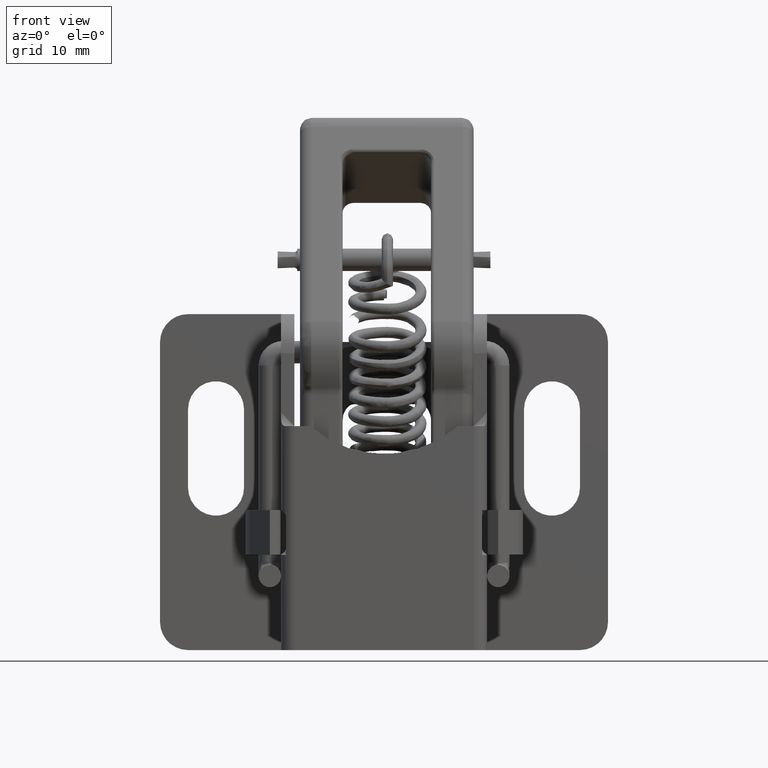
[diagram: clean part render]
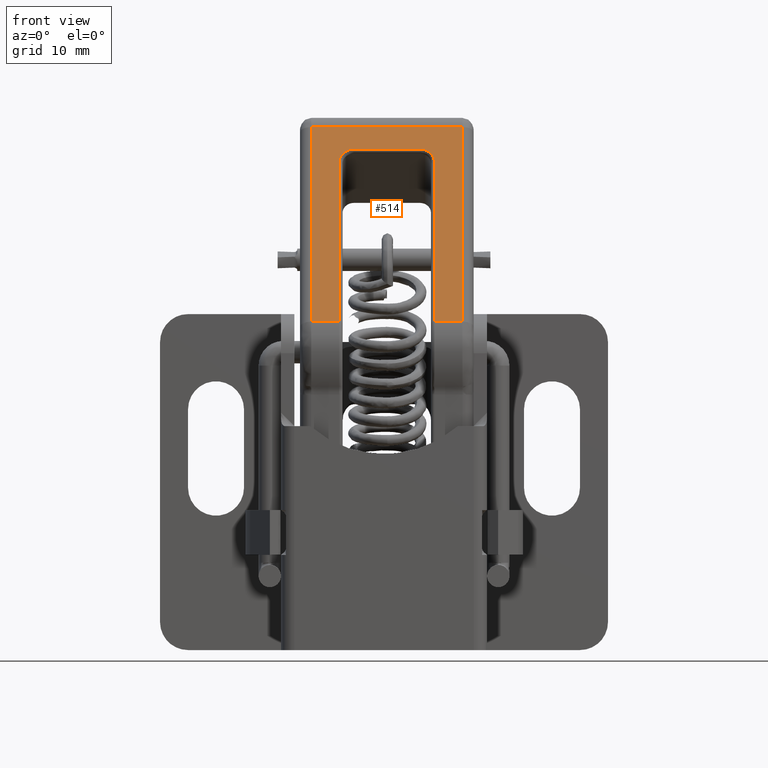
[diagram: same view with one face highlighted and labeled with its STEP entity id]
A machine part, front view. The second image highlights one B-rep face of the part: STEP entity #514.
In plain terms, the highlighted planar face has unit normal (0, 0.891, -0.454).
Its self-contained STEP definition (entity closure, byte-faithful):
#514=ADVANCED_FACE('',(#2806),#2805,.F.);
#2805=PLANE('',#5959);
#2806=FACE_OUTER_BOUND('',#5960,.T.);
#5956=CARTESIAN_POINT('',(-4.50000000000E-01,-8.10000000000E+00,1.42108547152E-15));
#5957=DIRECTION('',(7.28761780267E-16,-0.00000000000E+00,1.00000000000E+00));
#5958=DIRECTION('',(1.00000000000E+00,0.00000000000E+00,-7.28761780267E-16));
#5959=AXIS2_PLACEMENT_3D('',#5956,#5957,#5958);
#5960=EDGE_LOOP('',(#12015,#12016,#12017,#12018,#12019,#12020,#12021,#12022,#12023,#12024));
#12015=ORIENTED_EDGE('',*,*,#13056,.T.);
#12016=ORIENTED_EDGE('',*,*,#12912,.T.);
#12017=ORIENTED_EDGE('',*,*,#12909,.T.);
#12018=ORIENTED_EDGE('',*,*,#12906,.T.);
#12019=ORIENTED_EDGE('',*,*,#12903,.T.);
#12020=ORIENTED_EDGE('',*,*,#12900,.T.);
#12021=ORIENTED_EDGE('',*,*,#13057,.T.);
#12022=ORIENTED_EDGE('',*,*,#13026,.T.);
#12023=ORIENTED_EDGE('',*,*,#13055,.F.);
#12024=ORIENTED_EDGE('',*,*,#12994,.T.);
#12900=EDGE_CURVE('',#16139,#16119,#16153,.T.);
#12903=EDGE_CURVE('',#16159,#16139,#16173,.T.);
#12906=EDGE_CURVE('',#16179,#16159,#16193,.T.);
#12909=EDGE_CURVE('',#16199,#16179,#16213,.T.);
#12912=EDGE_CURVE('',#16219,#16199,#16233,.T.);
#12994=EDGE_CURVE('',#16761,#16780,#16787,.T.);
#13026=EDGE_CURVE('',#16965,#16978,#16991,.T.);
#13055=EDGE_CURVE('',#16761,#16978,#17181,.T.);
#13056=EDGE_CURVE('',#16780,#16219,#17187,.T.);
#13057=EDGE_CURVE('',#16119,#16965,#17193,.T.);
#16119=VERTEX_POINT('',#20363);
#16139=VERTEX_POINT('',#20377);
#16153=LINE('',#20386,#20387);
#16159=VERTEX_POINT('',#20389);
#16173=CIRCLE('',#20402,1.30000000000E+00);
#16179=VERTEX_POINT('',#20403);
#16193=LINE('',#20412,#20413);
#16199=VERTEX_POINT('',#20415);
#16213=CIRCLE('',#20428,1.30000000000E+00);
#16219=VERTEX_POINT('',#20429);
#16233=LINE('',#20438,#20439);
#16761=VERTEX_POINT('',#20785);
#16780=VERTEX_POINT('',#20798);
#16787=LINE('',#20803,#20804);
#16965=VERTEX_POINT('',#20920);
#16978=VERTEX_POINT('',#20929);
#16991=LINE('',#20938,#20939);
#17181=LINE('',#21064,#21065);
#17187=LINE('',#21067,#21068);
#17193=LINE('',#21070,#21071);
#20363=CARTESIAN_POINT('',(2.10000000000E+01,-4.25000000000E+00,1.42108547152E-14));
#20377=CARTESIAN_POINT('',(5.00000000000E+00,-4.25000000000E+00,-2.55066623093E-15));
#20386=CARTESIAN_POINT('',(5.00000000000E+00,-4.25000000000E+00,-2.55066623093E-15));
#20387=VECTOR('',#20388,1.60000000000E+01);
#20388=DIRECTION('',(1.00000000000E+00,0.00000000000E+00,-7.28761780267E-16));
#20389=CARTESIAN_POINT('',(3.70000000000E+00,-2.95000000000E+00,-1.60327591659E-15));
#20399=CARTESIAN_POINT('',(5.00000000000E+00,-2.95000000000E+00,-2.54787510534E-15));
#20400=DIRECTION('',(7.28761780267E-16,0.00000000000E+00,1.00000000000E+00));
#20401=DIRECTION('',(-1.00000000000E+00,-0.00000000000E+00,7.28761780267E-16));
#20402=AXIS2_PLACEMENT_3D('',#20399,#20400,#20401);
#20403=CARTESIAN_POINT('',(3.70000000000E+00,2.95000000000E+00,-1.60327591659E-15));
#20412=CARTESIAN_POINT('',(3.70000000000E+00,2.95000000000E+00,-1.60327591659E-15));
#20413=VECTOR('',#20414,5.90000000000E+00);
#20414=DIRECTION('',(0.00000000000E+00,-1.00000000000E+00,0.00000000000E+00));
#20415=CARTESIAN_POINT('',(5.00000000000E+00,4.25000000000E+00,-2.55066623093E-15));
#20425=CARTESIAN_POINT('',(5.00000000000E+00,2.95000000000E+00,-2.54787510534E-15));
#20426=DIRECTION('',(7.28761780267E-16,0.00000000000E+00,1.00000000000E+00));
#20427=DIRECTION('',(-1.00000000000E+00,-0.00000000000E+00,7.28761780267E-16));
#20428=AXIS2_PLACEMENT_3D('',#20425,#20426,#20427);
#20429=CARTESIAN_POINT('',(2.10000000000E+01,4.25000000000E+00,1.42108547152E-14));
#20438=CARTESIAN_POINT('',(2.10000000000E+01,4.25000000000E+00,-1.42108547152E-14));
#20439=VECTOR('',#20440,1.60000000000E+01);
#20440=DIRECTION('',(-1.00000000000E+00,0.00000000000E+00,7.28761780267E-16));
#20785=CARTESIAN_POINT('',(1.50000000000E+00,6.75000000000E+00,0.00000000000E+00));
#20798=CARTESIAN_POINT('',(2.10000000000E+01,6.75000000000E+00,1.42108547152E-14));
#20803=CARTESIAN_POINT('',(1.50000000000E+00,6.75000000000E+00,0.00000000000E+00));
#20804=VECTOR('',#20805,1.95000000000E+01);
#20805=DIRECTION('',(1.00000000000E+00,0.00000000000E+00,-7.28761780267E-16));
#20920=CARTESIAN_POINT('',(2.10000000000E+01,-6.75000000000E+00,1.42108547152E-14));
#20929=CARTESIAN_POINT('',(1.50000000000E+00,-6.75000000000E+00,0.00000000000E+00));
#20938=CARTESIAN_POINT('',(2.10000000000E+01,-6.75000000000E+00,-1.42108547152E-14));
#20939=VECTOR('',#20940,1.95000000000E+01);
#20940=DIRECTION('',(-1.00000000000E+00,0.00000000000E+00,7.28761780267E-16));
#21064=CARTESIAN_POINT('',(1.50000000000E+00,6.75000000000E+00,0.00000000000E+00));
#21065=VECTOR('',#21066,1.35000000000E+01);
#21066=DIRECTION('',(0.00000000000E+00,-1.00000000000E+00,0.00000000000E+00));
#21067=CARTESIAN_POINT('',(2.10000000000E+01,6.75000000000E+00,1.42108547152E-14));
#21068=VECTOR('',#21069,2.50000000000E+00);
#21069=DIRECTION('',(0.00000000000E+00,-1.00000000000E+00,0.00000000000E+00));
#21070=CARTESIAN_POINT('',(2.10000000000E+01,-4.25000000000E+00,1.42108547152E-14));
#21071=VECTOR('',#21072,2.50000000000E+00);
#21072=DIRECTION('',(0.00000000000E+00,-1.00000000000E+00,0.00000000000E+00));